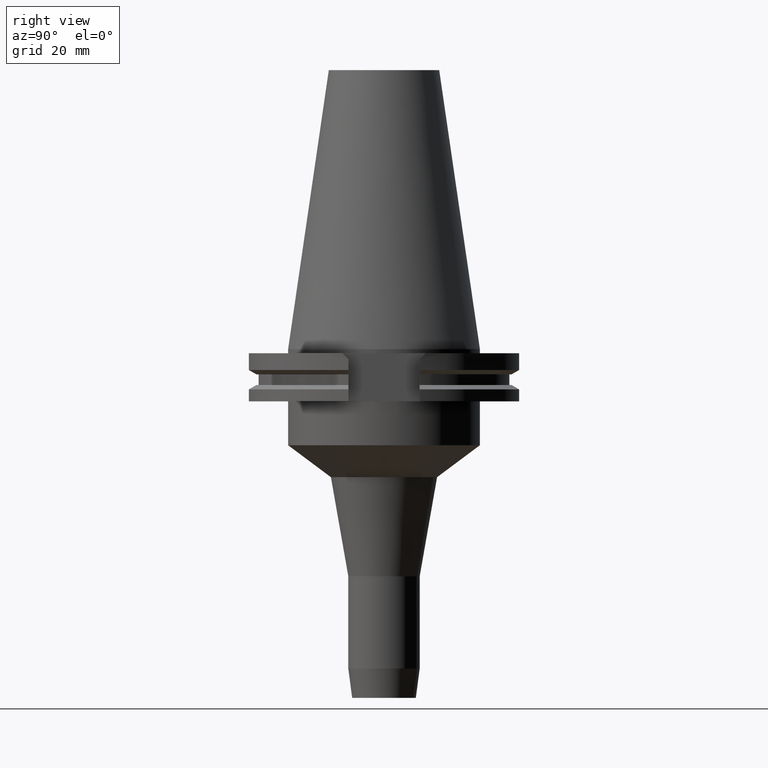
[diagram: clean part render]
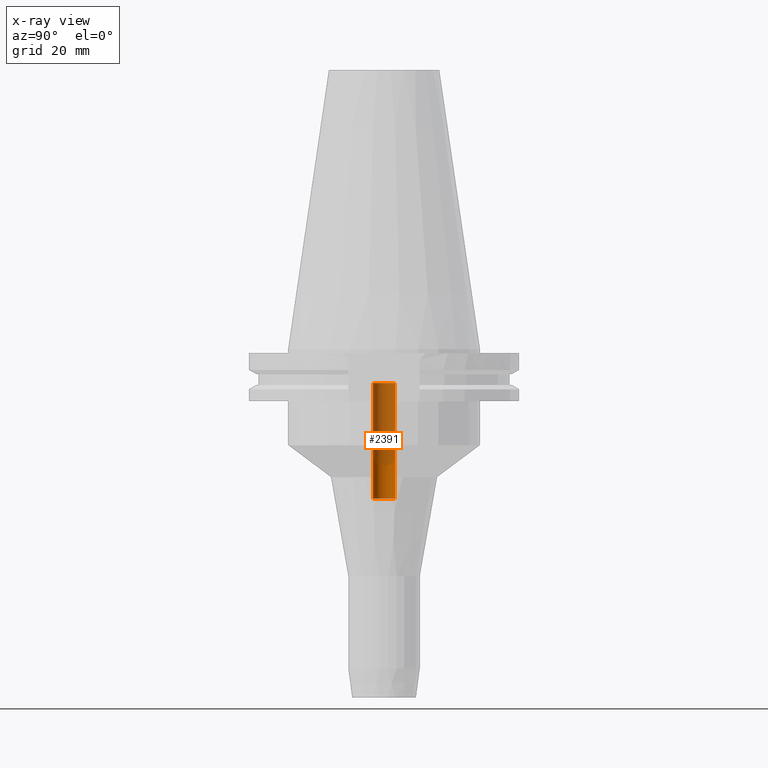
[diagram: x-ray — body ghosted, one internal face saturated and labeled with its STEP entity id]
A machine part, right view, then the same camera in x-ray: the body is ghosted and one INTERNAL B-rep face — a face not visible from any outside direction — is saturated and labeled: STEP entity #2391.
In plain terms, the highlighted cylindrical surface (edge-blend (fillet) strip) has radius 4 mm, axis along (0, 0, 1).
Its self-contained STEP definition (entity closure, byte-faithful):
#1088=CARTESIAN_POINT('',(0.E0,0.E0,-5.44E1));
#1089=DIRECTION('',(0.E0,0.E0,-1.E0));
#1090=DIRECTION('',(0.E0,-1.E0,0.E0));
#1091=AXIS2_PLACEMENT_3D('',#1088,#1089,#1090);
#1120=DIRECTION('',(0.E0,0.E0,1.E0));
#1121=VECTOR('',#1120,4.2E1);
#1122=CARTESIAN_POINT('',(0.E0,-4.E0,-5.44E1));
#1123=LINE('',#1122,#1121);
#1127=DIRECTION('',(0.E0,0.E0,1.E0));
#1128=VECTOR('',#1127,4.2E1);
#1129=CARTESIAN_POINT('',(0.E0,4.E0,-5.44E1));
#1130=LINE('',#1129,#1128);
#1158=CARTESIAN_POINT('',(0.E0,0.E0,-1.24E1));
#1159=DIRECTION('',(0.E0,0.E0,1.E0));
#1160=DIRECTION('',(0.E0,1.E0,0.E0));
#1161=AXIS2_PLACEMENT_3D('',#1158,#1159,#1160);
#1392=CARTESIAN_POINT('',(0.E0,-4.E0,-5.44E1));
#1393=CARTESIAN_POINT('',(0.E0,4.E0,-5.44E1));
#1394=VERTEX_POINT('',#1392);
#1395=VERTEX_POINT('',#1393);
#1396=CARTESIAN_POINT('',(0.E0,4.E0,-1.24E1));
#1397=VERTEX_POINT('',#1396);
#1398=CARTESIAN_POINT('',(0.E0,-4.E0,-1.24E1));
#1399=VERTEX_POINT('',#1398);
#2377=CARTESIAN_POINT('',(0.E0,0.E0,-1.3843E2));
#2378=DIRECTION('',(0.E0,0.E0,1.E0));
#2379=DIRECTION('',(0.E0,1.E0,0.E0));
#2380=AXIS2_PLACEMENT_3D('',#2377,#2378,#2379);
#2381=CYLINDRICAL_SURFACE('',#2380,4.E0);
#2383=ORIENTED_EDGE('',*,*,#2382,.F.);
#2384=ORIENTED_EDGE('',*,*,#2366,.F.);
#2386=ORIENTED_EDGE('',*,*,#2385,.T.);
#2388=ORIENTED_EDGE('',*,*,#2387,.F.);
#2389=EDGE_LOOP('',(#2383,#2384,#2386,#2388));
#2390=FACE_OUTER_BOUND('',#2389,.F.);
#1092=CIRCLE('',#1091,4.E0);
#1162=CIRCLE('',#1161,4.E0);
#2366=EDGE_CURVE('',#1394,#1395,#1092,.T.);
#2382=EDGE_CURVE('',#1395,#1397,#1130,.T.);
#2385=EDGE_CURVE('',#1394,#1399,#1123,.T.);
#2387=EDGE_CURVE('',#1397,#1399,#1162,.T.);
#2391=ADVANCED_FACE('',(#2390),#2381,.F.);